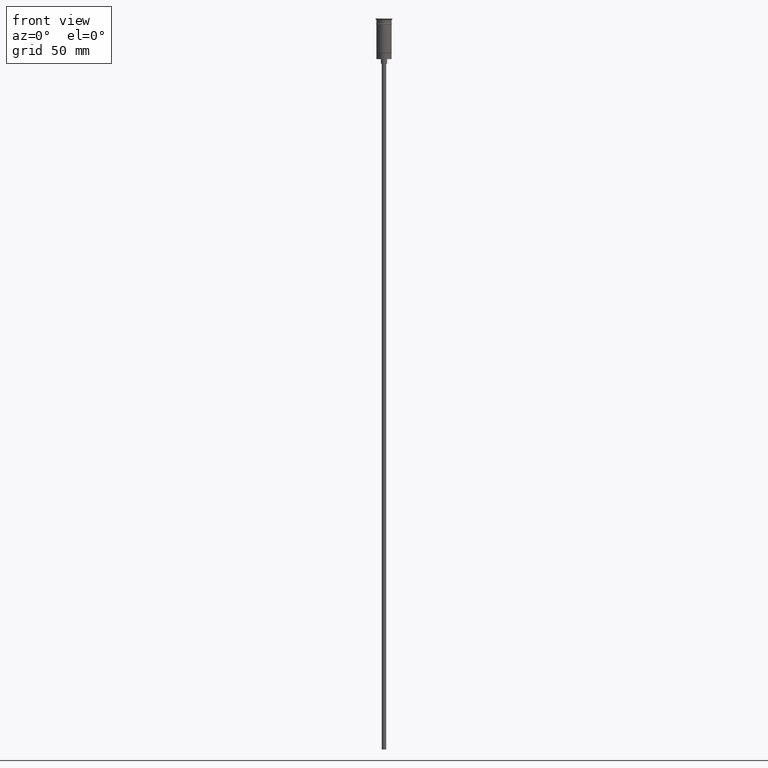
[diagram: clean part render]
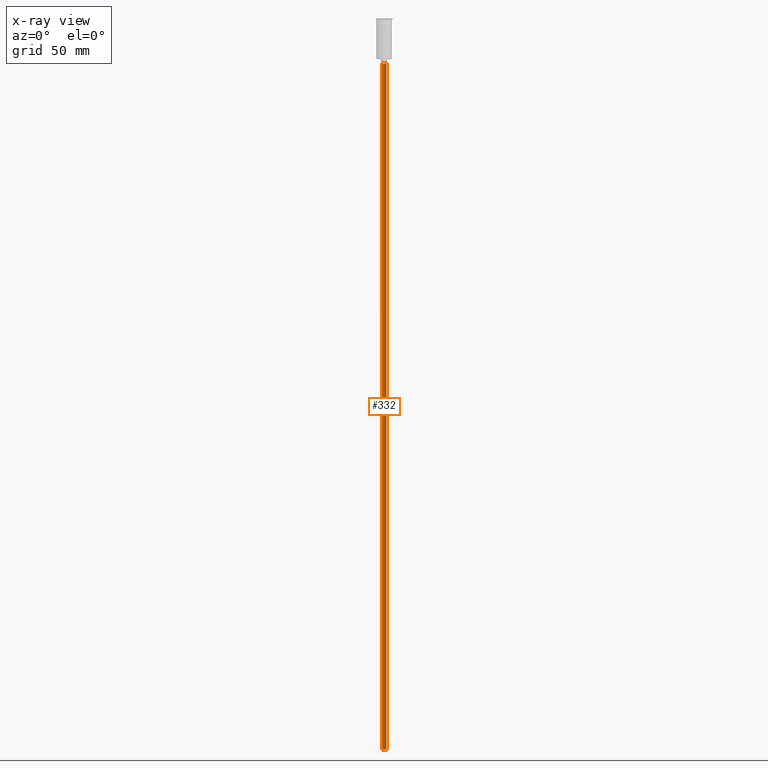
[diagram: x-ray — body ghosted, one internal face saturated and labeled with its STEP entity id]
A machine part, front view, then the same camera in x-ray: the body is ghosted and one INTERNAL B-rep face — a face not visible from any outside direction — is saturated and labeled: STEP entity #332.
In plain terms, the highlighted cylindrical surface (edge-blend (fillet) strip) has radius 1.5 mm, axis along (-0, -0, 1).
Its self-contained STEP definition (entity closure, byte-faithful):
#8 = CARTESIAN_POINT ( 'NONE',  ( 0.000000000000000000, 0.000000000000000000, -476.5000000000000568 ) ) ;
#53 = CARTESIAN_POINT ( 'NONE',  ( 0.000000000000000000, 0.000000000000000000, -29.50000000000000000 ) ) ;
#97 = VERTEX_POINT ( 'NONE', #220 ) ;
#115 = VECTOR ( 'NONE', #1433, 1000.000000000000000 ) ;
#171 = ORIENTED_EDGE ( 'NONE', *, *, #737, .T. ) ;
#179 = ORIENTED_EDGE ( 'NONE', *, *, #1281, .F. ) ;
#188 = EDGE_LOOP ( 'NONE', ( #179, #171, #1297, #1450 ) ) ;
#207 = CIRCLE ( 'NONE', #399, 1.500000000000000222 ) ;
#219 = CYLINDRICAL_SURFACE ( 'NONE', #845, 1.500000000000000222 ) ;
#220 = CARTESIAN_POINT ( 'NONE',  ( -1.500000000000000222, 1.836970198721030181E-16, -476.5000000000000568 ) ) ;
#332 = ADVANCED_FACE ( 'NONE', ( #1346 ), #219, .T. ) ;
#399 = AXIS2_PLACEMENT_3D ( 'NONE', #8, #1129, #1511 ) ;
#447 = LINE ( 'NONE', #919, #115 ) ;
#518 = AXIS2_PLACEMENT_3D ( 'NONE', #53, #639, #1508 ) ;
#587 = DIRECTION ( 'NONE',  ( 1.000000000000000000, 0.000000000000000000, 0.000000000000000000 ) ) ;
#639 = DIRECTION ( 'NONE',  ( 0.000000000000000000, 0.000000000000000000, -1.000000000000000000 ) ) ;
#646 = EDGE_CURVE ( 'NONE', #795, #1342, #447, .T. ) ;
#737 = EDGE_CURVE ( 'NONE', #97, #1393, #999, .T. ) ;
#742 = EDGE_CURVE ( 'NONE', #1393, #1342, #1597, .T. ) ;
#745 = DIRECTION ( 'NONE',  ( -0.000000000000000000, -0.000000000000000000, 1.000000000000000000 ) ) ;
#795 = VERTEX_POINT ( 'NONE', #906 ) ;
#845 = AXIS2_PLACEMENT_3D ( 'NONE', #1097, #1192, #587 ) ;
#906 = CARTESIAN_POINT ( 'NONE',  ( 1.500000000000000222, 0.000000000000000000, -476.5000000000000568 ) ) ;
#919 = CARTESIAN_POINT ( 'NONE',  ( 1.500000000000000222, 0.000000000000000000, -476.5000000000000568 ) ) ;
#999 = LINE ( 'NONE', #1131, #1364 ) ;
#1093 = CARTESIAN_POINT ( 'NONE',  ( -1.500000000000000222, 1.836970198721030181E-16, -29.50000000000000000 ) ) ;
#1097 = CARTESIAN_POINT ( 'NONE',  ( 0.000000000000000000, 0.000000000000000000, -476.5000000000000568 ) ) ;
#1129 = DIRECTION ( 'NONE',  ( 0.000000000000000000, 0.000000000000000000, -1.000000000000000000 ) ) ;
#1131 = CARTESIAN_POINT ( 'NONE',  ( -1.500000000000000222, 1.836970198721030181E-16, -476.5000000000000568 ) ) ;
#1178 = CARTESIAN_POINT ( 'NONE',  ( 1.500000000000000222, 0.000000000000000000, -29.50000000000000000 ) ) ;
#1192 = DIRECTION ( 'NONE',  ( -0.000000000000000000, -0.000000000000000000, 1.000000000000000000 ) ) ;
#1281 = EDGE_CURVE ( 'NONE', #97, #795, #207, .T. ) ;
#1297 = ORIENTED_EDGE ( 'NONE', *, *, #742, .T. ) ;
#1342 = VERTEX_POINT ( 'NONE', #1178 ) ;
#1346 = FACE_OUTER_BOUND ( 'NONE', #188, .T. ) ;
#1364 = VECTOR ( 'NONE', #745, 1000.000000000000000 ) ;
#1393 = VERTEX_POINT ( 'NONE', #1093 ) ;
#1433 = DIRECTION ( 'NONE',  ( -0.000000000000000000, -0.000000000000000000, 1.000000000000000000 ) ) ;
#1450 = ORIENTED_EDGE ( 'NONE', *, *, #646, .F. ) ;
#1508 = DIRECTION ( 'NONE',  ( -1.000000000000000000, 0.000000000000000000, 0.000000000000000000 ) ) ;
#1511 = DIRECTION ( 'NONE',  ( -1.000000000000000000, 0.000000000000000000, 0.000000000000000000 ) ) ;
#1597 = CIRCLE ( 'NONE', #518, 1.500000000000000222 ) ;